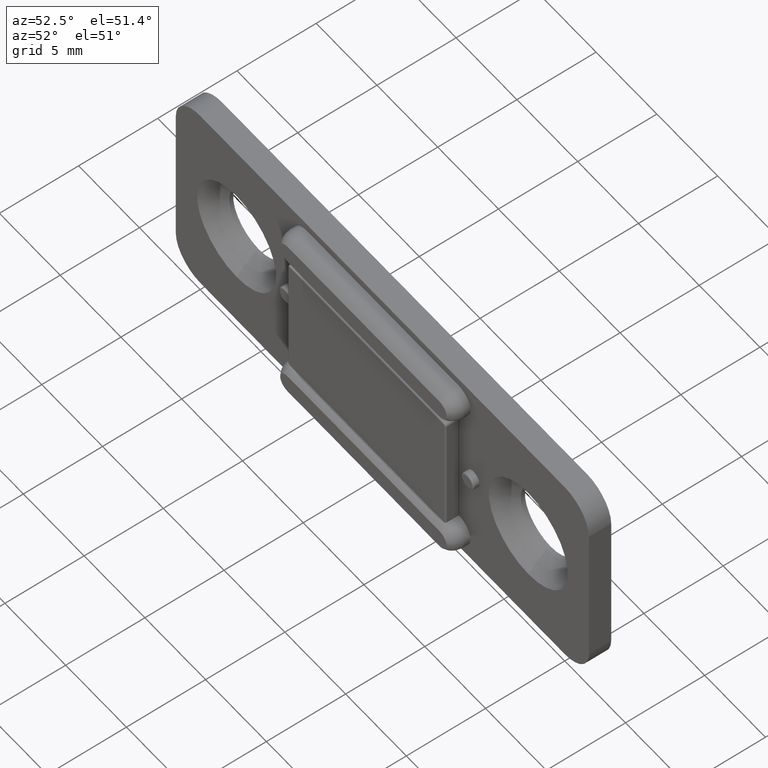
[diagram: clean part render]
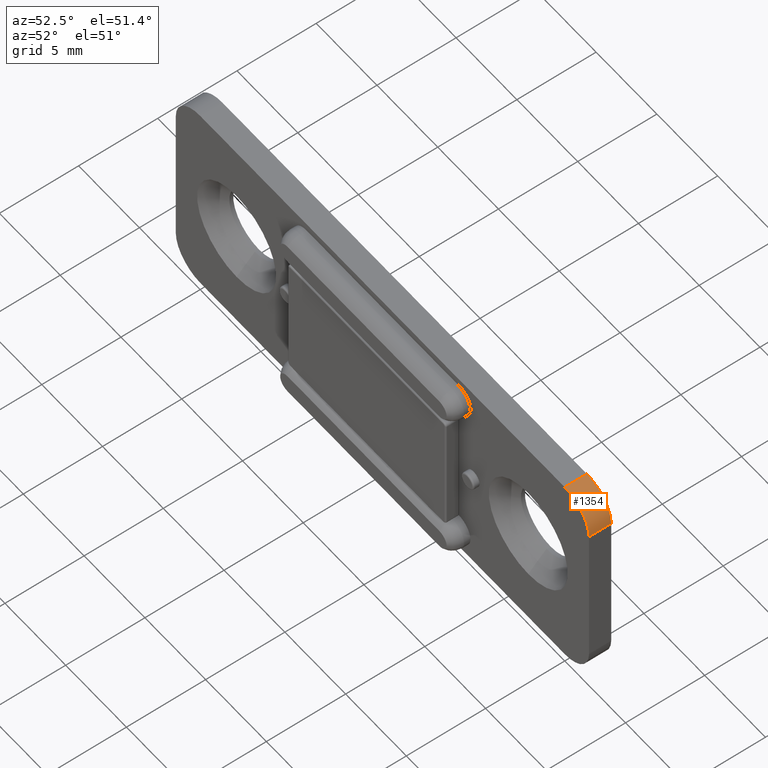
[diagram: same view with one face highlighted and labeled with its STEP entity id]
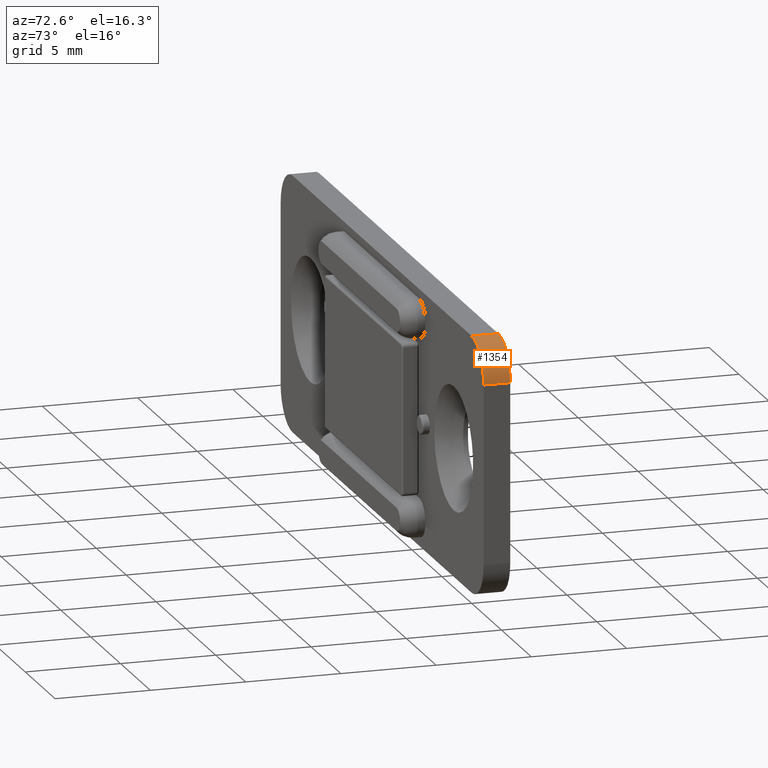
[diagram: same view with one face highlighted and labeled with its STEP entity id]
A machine part, auxiliary view. The second image highlights one B-rep face of the part: STEP entity #1354.
A second angle (auxiliary view) of the same face is appended — the face is thin or edge-on in the first view.
In plain terms, the highlighted cylindrical surface (partial cylindrical patch) has radius 2 mm, axis along (0, -1, 0).
Its self-contained STEP definition (entity closure, byte-faithful):
#47 = VECTOR ( 'NONE', #1609, 1000.000000000000000 ) ;
#57 = CIRCLE ( 'NONE', #488, 2.000000000000000000 ) ;
#328 = ORIENTED_EDGE ( 'NONE', *, *, #995, .T. ) ;
#434 = CARTESIAN_POINT ( 'NONE',  ( 15.00000000000000000, 1.399999999999846000, 6.699999999999900700 ) ) ;
#474 = VERTEX_POINT ( 'NONE', #702 ) ;
#488 = AXIS2_PLACEMENT_3D ( 'NONE', #1794, #614, #1608 ) ;
#614 = DIRECTION ( 'NONE',  ( -0.0000000000000000000, -1.000000000000000000, -0.0000000000000000000 ) ) ;
#633 = CARTESIAN_POINT ( 'NONE',  ( 17.00000000000000000, 1000.000000000000000, 4.699999999999900700 ) ) ;
#645 = FACE_OUTER_BOUND ( 'NONE', #1788, .T. ) ;
#661 = CARTESIAN_POINT ( 'NONE',  ( 15.00000000000000000, 0.0000000000000000000, 4.699999999999900700 ) ) ;
#665 = DIRECTION ( 'NONE',  ( -0.0000000000000000000, -1.000000000000000000, -0.0000000000000000000 ) ) ;
#702 = CARTESIAN_POINT ( 'NONE',  ( 17.00000000000000000, 0.0000000000000000000, 4.699999999999900700 ) ) ;
#832 = ORIENTED_EDGE ( 'NONE', *, *, #1744, .F. ) ;
#992 = VECTOR ( 'NONE', #2164, 1000.000000000000000 ) ;
#995 = EDGE_CURVE ( 'NONE', #1110, #1035, #57, .T. ) ;
#1035 = VERTEX_POINT ( 'NONE', #434 ) ;
#1065 = LINE ( 'NONE', #1859, #47 ) ;
#1110 = VERTEX_POINT ( 'NONE', #1377 ) ;
#1115 = ORIENTED_EDGE ( 'NONE', *, *, #1976, .F. ) ;
#1165 = DIRECTION ( 'NONE',  ( 0.0000000000000000000, -1.000000000000000000, 0.0000000000000000000 ) ) ;
#1293 = VERTEX_POINT ( 'NONE', #1719 ) ;
#1354 = ADVANCED_FACE ( 'NONE', ( #645 ), #1478, .T. ) ;
#1377 = CARTESIAN_POINT ( 'NONE',  ( 17.00000000000000000, 1.399999999999846000, 4.699999999999900700 ) ) ;
#1441 = LINE ( 'NONE', #633, #992 ) ;
#1478 = CYLINDRICAL_SURFACE ( 'NONE', #1922, 2.000000000000000000 ) ;
#1500 = CARTESIAN_POINT ( 'NONE',  ( 15.00000000000000000, 1000.000000000000000, 4.699999999999900700 ) ) ;
#1608 = DIRECTION ( 'NONE',  ( 0.0000000000000000000, 0.0000000000000000000, 1.000000000000000000 ) ) ;
#1609 = DIRECTION ( 'NONE',  ( 0.0000000000000000000, -1.000000000000000000, 0.0000000000000000000 ) ) ;
#1679 = DIRECTION ( 'NONE',  ( 0.0000000000000000000, 0.0000000000000000000, -1.000000000000000000 ) ) ;
#1690 = CIRCLE ( 'NONE', #1955, 2.000000000000000000 ) ;
#1719 = CARTESIAN_POINT ( 'NONE',  ( 15.00000000000000000, 0.0000000000000000000, 6.699999999999900700 ) ) ;
#1744 = EDGE_CURVE ( 'NONE', #474, #1293, #1690, .T. ) ;
#1788 = EDGE_LOOP ( 'NONE', ( #832, #1115, #328, #1904 ) ) ;
#1794 = CARTESIAN_POINT ( 'NONE',  ( 15.00000000000000000, 1.399999999999846000, 4.699999999999900700 ) ) ;
#1809 = EDGE_CURVE ( 'NONE', #1035, #1293, #1065, .T. ) ;
#1859 = CARTESIAN_POINT ( 'NONE',  ( 15.00000000000000000, 1000.000000000000000, 6.699999999999900700 ) ) ;
#1904 = ORIENTED_EDGE ( 'NONE', *, *, #1809, .T. ) ;
#1922 = AXIS2_PLACEMENT_3D ( 'NONE', #1500, #1165, #1679 ) ;
#1954 = DIRECTION ( 'NONE',  ( 0.0000000000000000000, 0.0000000000000000000, 1.000000000000000000 ) ) ;
#1955 = AXIS2_PLACEMENT_3D ( 'NONE', #661, #665, #1954 ) ;
#1976 = EDGE_CURVE ( 'NONE', #1110, #474, #1441, .T. ) ;
#2164 = DIRECTION ( 'NONE',  ( 0.0000000000000000000, -1.000000000000000000, 0.0000000000000000000 ) ) ;